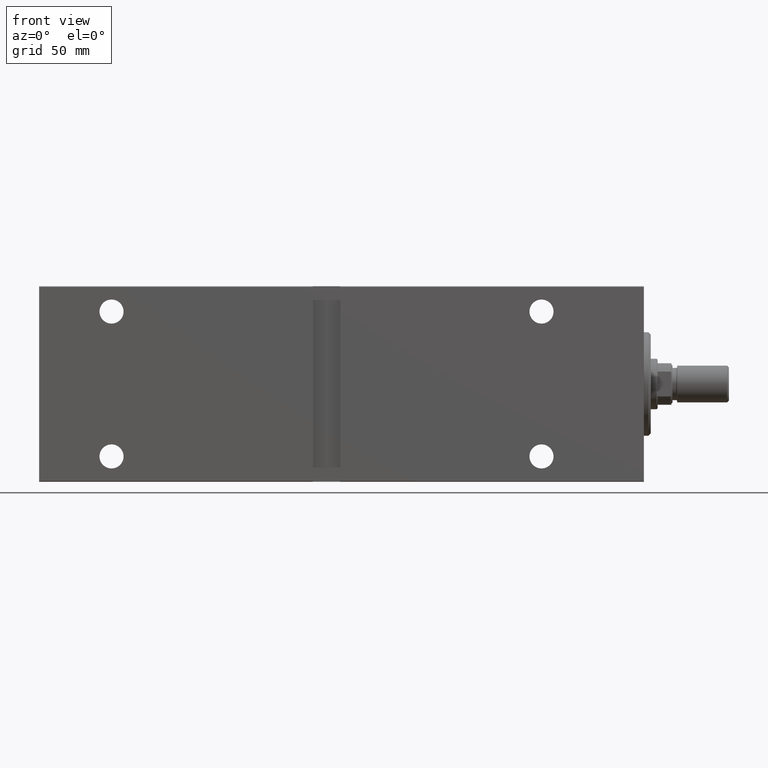
[diagram: clean part render]
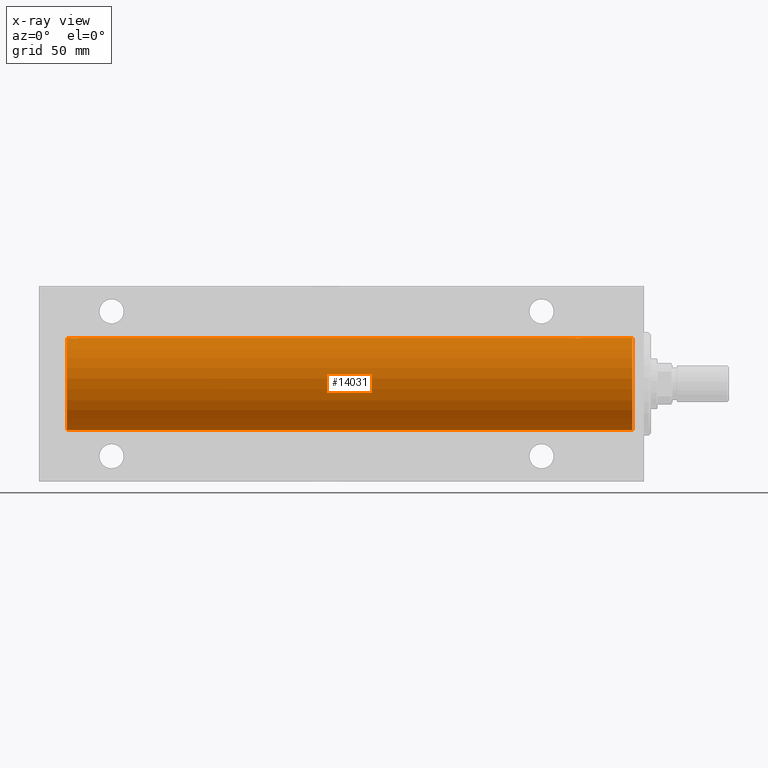
[diagram: x-ray — body ghosted, one internal face saturated and labeled with its STEP entity id]
A machine part, front view, then the same camera in x-ray: the body is ghosted and one INTERNAL B-rep face — a face not visible from any outside direction — is saturated and labeled: STEP entity #14031.
In plain terms, the highlighted cylindrical surface (partial cylindrical patch) has radius 20 mm, axis along (1, 0, -0).
Its self-contained STEP definition (entity closure, byte-faithful):
#6 = CARTESIAN_POINT ( 'NONE',  ( 249.2357636512790009, 1.002099838626311801, 19.97517568592526160 ) ) ;
#14 = ORIENTED_EDGE ( 'NONE', *, *, #35476, .T. ) ;
#445 = CARTESIAN_POINT ( 'NONE',  ( 245.5000000000000000, -1.553188236289650144E-23, 20.00000000000000000 ) ) ;
#854 = EDGE_CURVE ( 'NONE', #26790, #27711, #3797, .T. ) ;
#1412 = CARTESIAN_POINT ( 'NONE',  ( 30.39765113166073363, 0.6450624715427786260, 19.98996196681220283 ) ) ;
#1892 = LINE ( 'NONE', #12063, #39582 ) ;
#2194 = EDGE_LOOP ( 'NONE', ( #8814, #38151, #11118, #14, #37492, #19313, #3448, #4298 ) ) ;
#2640 = CIRCLE ( 'NONE', #18860, 20.00000000000000000 ) ;
#3448 = ORIENTED_EDGE ( 'NONE', *, *, #5705, .T. ) ;
#3797 = LINE ( 'NONE', #17269, #39447 ) ;
#3834 = VERTEX_POINT ( 'NONE', #36852 ) ;
#3983 = B_SPLINE_CURVE_WITH_KNOTS ( 'NONE', 3,
 ( #7081, #33828, #33386, #40885, #37133, #20571, #6, #23453, #10614, #30067, #27428, #30296, #6634, #36920, #43525, #37581, #7299, #16812, #34047, #10162, #23661, #3986, #17250, #30729, #13494, #17461, #33597, #26988, #20349, #445 ),
 .UNSPECIFIED., .F., .F.,
 ( 4, 2, 2, 2, 2, 2, 2, 2, 2, 2, 2, 2, 2, 2, 4 ),
 ( 6.293884343480953716E-18, 0.0003910512220831412721, 0.0007821024441662760389, 0.001173153666249410806, 0.001564204888332545573, 0.002346307332498815540, 0.003128409776665085074, 0.003519460998748178207, 0.003910512220831271341, 0.004301563442914364474, 0.004692614664997457607, 0.005083665887080551608, 0.005474717109163644742, 0.005865768331246737875, 0.006256819553329831009 ),
 .UNSPECIFIED. ) ;
#3986 = CARTESIAN_POINT ( 'NONE',  ( 245.9926135845601323, 1.321069663197669275, 19.95654117037011233 ) ) ;
#4096 = CARTESIAN_POINT ( 'NONE',  ( 5.000000000000004441, 2.449293598294706513E-15, -20.00000000000000000 ) ) ;
#4298 = ORIENTED_EDGE ( 'NONE', *, *, #36457, .T. ) ;
#4722 = DIRECTION ( 'NONE',  ( -1.000000000000000000, -0.000000000000000000, -0.000000000000000000 ) ) ;
#4912 = CARTESIAN_POINT ( 'NONE',  ( 251.0000000000000000, 0.000000000000000000, 0.000000000000000000 ) ) ;
#5055 = EDGE_CURVE ( 'NONE', #22207, #13619, #15989, .T. ) ;
#5163 = CARTESIAN_POINT ( 'NONE',  ( 26.50000000000001421, 0.1305706983324422532, 20.00000000000000355 ) ) ;
#5499 = CARTESIAN_POINT ( 'NONE',  ( 251.0000000000000000, 2.449293598294706513E-15, -20.00000000000000000 ) ) ;
#5705 = EDGE_CURVE ( 'NONE', #3834, #22300, #1892, .T. ) ;
#6634 = CARTESIAN_POINT ( 'NONE',  ( 247.7618015389742823, 1.999905101582714284, 19.89975827978156175 ) ) ;
#7081 = CARTESIAN_POINT ( 'NONE',  ( 249.5000000000000000, 6.477051911798287571E-15, 20.00000000000000000 ) ) ;
#7299 = CARTESIAN_POINT ( 'NONE',  ( 246.8562886936015275, 1.898109641280497639, 19.90978941500366872 ) ) ;
#7876 = VERTEX_POINT ( 'NONE', #36974 ) ;
#8036 = CARTESIAN_POINT ( 'NONE',  ( 29.02513908454997704, 1.947330458682951404, 19.90522393307485061 ) ) ;
#8242 = CARTESIAN_POINT ( 'NONE',  ( 26.70246098872837948, 0.8865903856744223877, 19.98070694681038972 ) ) ;
#8465 = CARTESIAN_POINT ( 'NONE',  ( 30.48701494615325558, 0.2622407139811342436, 19.99868965376114716 ) ) ;
#8814 = ORIENTED_EDGE ( 'NONE', *, *, #5055, .F. ) ;
#8954 = AXIS2_PLACEMENT_3D ( 'NONE', #24331, #37799, #21005 ) ;
#9339 = CYLINDRICAL_SURFACE ( 'NONE', #10277, 20.00000000000000000 ) ;
#10162 = CARTESIAN_POINT ( 'NONE',  ( 246.2803972465025311, 1.590453176650897360, 19.93679350243184345 ) ) ;
#10277 = AXIS2_PLACEMENT_3D ( 'NONE', #33208, #40026, #22834 ) ;
#10614 = CARTESIAN_POINT ( 'NONE',  ( 249.0061577038071903, 1.322305185229299962, 19.95645382900617903 ) ) ;
#11118 = ORIENTED_EDGE ( 'NONE', *, *, #854, .T. ) ;
#11354 = CARTESIAN_POINT ( 'NONE',  ( 30.43615228383326610, 0.5179893069484811097, 19.99370013622814213 ) ) ;
#11570 = CARTESIAN_POINT ( 'NONE',  ( 26.51308707988552982, 0.2631998640366412512, 19.99867931558985745 ) ) ;
#11782 = CARTESIAN_POINT ( 'NONE',  ( 26.50000000000000355, -1.552675476701256486E-23, 20.00000000000000000 ) ) ;
#11974 = DIRECTION ( 'NONE',  ( -1.000000000000000000, 0.000000000000000000, 0.000000000000000000 ) ) ;
#12063 = CARTESIAN_POINT ( 'NONE',  ( 251.0000000000000000, 0.000000000000000000, 20.00000000000000000 ) ) ;
#12229 = CARTESIAN_POINT ( 'NONE',  ( 30.00615770380712277, 1.322305185229317281, 19.95645382900617548 ) ) ;
#13154 = B_SPLINE_CURVE_WITH_KNOTS ( 'NONE', 3,
 ( #21516, #18428, #8465, #11354, #1412, #18207, #39178, #18643, #12229, #31691, #15105, #8036, #14892, #31905, #38527, #25716, #32117, #15321, #25281, #28386, #25498, #25061, #35425, #15548, #8242, #38969, #22172, #11570, #5163, #11782 ),
 .UNSPECIFIED., .F., .F.,
 ( 4, 2, 2, 2, 2, 2, 2, 2, 2, 2, 2, 2, 2, 2, 4 ),
 ( 2.326943606913493903E-17, 0.0003910512220831276653, 0.0007821024441662321287, 0.001173153666249336213, 0.001564204888332440839, 0.002346307332498649440, 0.003128409776664858692, 0.003519460998747968306, 0.003910512220831077919, 0.004301563442914186665, 0.004692614664997295411, 0.005083665887080405892, 0.005474717109163514638, 0.005865768331246624251, 0.006256819553329733864 ),
 .UNSPECIFIED. ) ;
#13494 = CARTESIAN_POINT ( 'NONE',  ( 245.7024609887283759, 0.8865903856744304923, 19.98070694681039328 ) ) ;
#13619 = VERTEX_POINT ( 'NONE', #4096 ) ;
#14031 = ADVANCED_FACE ( 'NONE', ( #26583 ), #9339, .F. ) ;
#14892 = CARTESIAN_POINT ( 'NONE',  ( 28.76180153897436753, 1.999905101582718503, 19.89975827978156531 ) ) ;
#15105 = CARTESIAN_POINT ( 'NONE',  ( 29.50645759073828600, 1.747830109444744595, 19.92373272380676852 ) ) ;
#15321 = CARTESIAN_POINT ( 'NONE',  ( 27.61403810544161885, 1.797847595792754438, 19.91909332229799290 ) ) ;
#15325 = CIRCLE ( 'NONE', #8954, 20.00000000000000000 ) ;
#15548 = CARTESIAN_POINT ( 'NONE',  ( 26.76510545398015850, 1.003547732426796957, 19.97510079925437765 ) ) ;
#15989 = LINE ( 'NONE', #42716, #41525 ) ;
#16022 = DIRECTION ( 'NONE',  ( -1.000000000000000000, -0.000000000000000000, -0.000000000000000000 ) ) ;
#16812 = CARTESIAN_POINT ( 'NONE',  ( 246.6140381054416935, 1.797847595792758879, 19.91909332229798224 ) ) ;
#17250 = CARTESIAN_POINT ( 'NONE',  ( 245.9099293231032561, 1.220099331833882195, 19.96304379627741454 ) ) ;
#17269 = CARTESIAN_POINT ( 'NONE',  ( 251.0000000000000000, 0.000000000000000000, 20.00000000000000000 ) ) ;
#17461 = CARTESIAN_POINT ( 'NONE',  ( 245.6021031264113503, 0.6443418861413122700, 19.98998539619404369 ) ) ;
#18207 = CARTESIAN_POINT ( 'NONE',  ( 30.29721343056695204, 0.8872481584516898057, 19.98067755938509293 ) ) ;
#18422 = LINE ( 'NONE', #35209, #42885 ) ;
#18428 = CARTESIAN_POINT ( 'NONE',  ( 30.49999999999993250, 0.1322335637814686382, 19.99999999999999645 ) ) ;
#18643 = CARTESIAN_POINT ( 'NONE',  ( 30.09059733457551289, 1.219458756546281775, 19.96308513509966787 ) ) ;
#18860 = AXIS2_PLACEMENT_3D ( 'NONE', #4912, #11974, #21921 ) ;
#19313 = ORIENTED_EDGE ( 'NONE', *, *, #40546, .T. ) ;
#20349 = CARTESIAN_POINT ( 'NONE',  ( 245.4999999999999716, 0.1305706983324437798, 20.00000000000000355 ) ) ;
#20571 = CARTESIAN_POINT ( 'NONE',  ( 249.2972134305668703, 0.8872481584516723752, 19.98067755938510359 ) ) ;
#21005 = DIRECTION ( 'NONE',  ( 0.000000000000000000, 0.000000000000000000, 1.000000000000000000 ) ) ;
#21516 = CARTESIAN_POINT ( 'NONE',  ( 30.50000000000000000, -1.366442278252767519E-14, 20.00000000000000000 ) ) ;
#21921 = DIRECTION ( 'NONE',  ( 0.000000000000000000, 0.000000000000000000, 1.000000000000000000 ) ) ;
#22172 = CARTESIAN_POINT ( 'NONE',  ( 26.56426851132708222, 0.5196544277756653951, 19.99365919015135873 ) ) ;
#22207 = VERTEX_POINT ( 'NONE', #5499 ) ;
#22300 = VERTEX_POINT ( 'NONE', #39514 ) ;
#22834 = DIRECTION ( 'NONE',  ( 0.000000000000000000, 0.000000000000000000, 1.000000000000000000 ) ) ;
#23453 = CARTESIAN_POINT ( 'NONE',  ( 249.0905973345755342, 1.219458756546266676, 19.96308513509966431 ) ) ;
#23661 = CARTESIAN_POINT ( 'NONE',  ( 246.1793983491616871, 1.507796451871725285, 19.94330239452387588 ) ) ;
#24331 = CARTESIAN_POINT ( 'NONE',  ( 5.000000000000004441, 0.000000000000000000, 0.000000000000000000 ) ) ;
#25061 = CARTESIAN_POINT ( 'NONE',  ( 26.99261358456011806, 1.321069663197660171, 19.95654117037012298 ) ) ;
#25266 = VERTEX_POINT ( 'NONE', #30386 ) ;
#25281 = CARTESIAN_POINT ( 'NONE',  ( 27.49702773215045681, 1.735228749583822117, 19.92471474456649005 ) ) ;
#25498 = CARTESIAN_POINT ( 'NONE',  ( 27.17939834916165509, 1.507796451871717514, 19.94330239452387943 ) ) ;
#25716 = CARTESIAN_POINT ( 'NONE',  ( 27.98100525813888240, 1.935912154109689531, 19.90610216711450775 ) ) ;
#26583 = FACE_OUTER_BOUND ( 'NONE', #2194, .T. ) ;
#26789 = CARTESIAN_POINT ( 'NONE',  ( 249.5000000000000000, 6.477051911798287571E-15, 20.00000000000000000 ) ) ;
#26790 = VERTEX_POINT ( 'NONE', #39558 ) ;
#26988 = CARTESIAN_POINT ( 'NONE',  ( 245.5130870798855369, 0.2631998640366418618, 19.99867931558985745 ) ) ;
#27428 = CARTESIAN_POINT ( 'NONE',  ( 248.5064575907383926, 1.747830109444734381, 19.92373272380677207 ) ) ;
#27711 = VERTEX_POINT ( 'NONE', #26789 ) ;
#28386 = CARTESIAN_POINT ( 'NONE',  ( 27.28039724650257014, 1.590453176650906908, 19.93679350243183990 ) ) ;
#30067 = CARTESIAN_POINT ( 'NONE',  ( 248.7295011223063455, 1.598854313793174775, 19.93684595445884966 ) ) ;
#30296 = CARTESIAN_POINT ( 'NONE',  ( 248.0251390845500055, 1.947330458682946075, 19.90522393307485416 ) ) ;
#30386 = CARTESIAN_POINT ( 'NONE',  ( 30.50000000000000000, -1.366442278252767519E-14, 20.00000000000000000 ) ) ;
#30729 = CARTESIAN_POINT ( 'NONE',  ( 245.7651054539801692, 1.003547732426790073, 19.97510079925437410 ) ) ;
#31691 = CARTESIAN_POINT ( 'NONE',  ( 29.72950112230632769, 1.598854313793188320, 19.93684595445884256 ) ) ;
#31905 = CARTESIAN_POINT ( 'NONE',  ( 28.37018818709292134, 2.000047251570880480, 19.89974399317116038 ) ) ;
#32117 = CARTESIAN_POINT ( 'NONE',  ( 27.85628869360149551, 1.898109641280495419, 19.90978941500367583 ) ) ;
#33208 = CARTESIAN_POINT ( 'NONE',  ( 251.0000000000000000, 0.000000000000000000, 0.000000000000000000 ) ) ;
#33386 = CARTESIAN_POINT ( 'NONE',  ( 249.4870149461532662, 0.2622407139811160914, 19.99868965376114716 ) ) ;
#33597 = CARTESIAN_POINT ( 'NONE',  ( 245.5642685113271000, 0.5196544277756655061, 19.99365919015135873 ) ) ;
#33828 = CARTESIAN_POINT ( 'NONE',  ( 249.5000000000000000, 0.1322335637814730791, 19.99999999999999289 ) ) ;
#34047 = CARTESIAN_POINT ( 'NONE',  ( 246.4970277321504568, 1.735228749583813901, 19.92471474456649005 ) ) ;
#35209 = CARTESIAN_POINT ( 'NONE',  ( 251.0000000000000000, 0.000000000000000000, 20.00000000000000000 ) ) ;
#35425 = CARTESIAN_POINT ( 'NONE',  ( 26.90992932310325969, 1.220099331833888634, 19.96304379627741099 ) ) ;
#35476 = EDGE_CURVE ( 'NONE', #27711, #7876, #3983, .T. ) ;
#36457 = EDGE_CURVE ( 'NONE', #22300, #13619, #15325, .T. ) ;
#36852 = CARTESIAN_POINT ( 'NONE',  ( 26.50000000000000355, -1.552675476701256486E-23, 20.00000000000000000 ) ) ;
#36920 = CARTESIAN_POINT ( 'NONE',  ( 247.3701881870929640, 2.000047251570877815, 19.89974399317115683 ) ) ;
#36974 = CARTESIAN_POINT ( 'NONE',  ( 245.5000000000000000, -1.553188236289650144E-23, 20.00000000000000000 ) ) ;
#37133 = CARTESIAN_POINT ( 'NONE',  ( 249.3976511316607514, 0.6450624715427595302, 19.98996196681220994 ) ) ;
#37492 = ORIENTED_EDGE ( 'NONE', *, *, #39264, .T. ) ;
#37581 = CARTESIAN_POINT ( 'NONE',  ( 246.9810052581388788, 1.935912154109689753, 19.90610216711451130 ) ) ;
#37799 = DIRECTION ( 'NONE',  ( -1.000000000000000000, 0.000000000000000000, 0.000000000000000000 ) ) ;
#38151 = ORIENTED_EDGE ( 'NONE', *, *, #41609, .F. ) ;
#38527 = CARTESIAN_POINT ( 'NONE',  ( 28.23758582179998911, 1.987020435121065853, 19.90106552791689509 ) ) ;
#38969 = CARTESIAN_POINT ( 'NONE',  ( 26.60210312641134678, 0.6443418861413038323, 19.98998539619404724 ) ) ;
#39178 = CARTESIAN_POINT ( 'NONE',  ( 30.23576365127895116, 1.002099838626329120, 19.97517568592526516 ) ) ;
#39264 = EDGE_CURVE ( 'NONE', #7876, #25266, #18422, .T. ) ;
#39414 = DIRECTION ( 'NONE',  ( -1.000000000000000000, -0.000000000000000000, -0.000000000000000000 ) ) ;
#39447 = VECTOR ( 'NONE', #40903, 1000.000000000000000 ) ;
#39514 = CARTESIAN_POINT ( 'NONE',  ( 5.000000000000004441, 0.000000000000000000, 20.00000000000000000 ) ) ;
#39558 = CARTESIAN_POINT ( 'NONE',  ( 251.0000000000000000, 0.000000000000000000, 20.00000000000000000 ) ) ;
#39582 = VECTOR ( 'NONE', #16022, 1000.000000000000000 ) ;
#40026 = DIRECTION ( 'NONE',  ( -1.000000000000000000, -0.000000000000000000, -0.000000000000000000 ) ) ;
#40546 = EDGE_CURVE ( 'NONE', #25266, #3834, #13154, .T. ) ;
#40885 = CARTESIAN_POINT ( 'NONE',  ( 249.4361522838332519, 0.5179893069484667878, 19.99370013622814923 ) ) ;
#40903 = DIRECTION ( 'NONE',  ( -1.000000000000000000, -0.000000000000000000, -0.000000000000000000 ) ) ;
#41525 = VECTOR ( 'NONE', #39414, 1000.000000000000000 ) ;
#41609 = EDGE_CURVE ( 'NONE', #26790, #22207, #2640, .T. ) ;
#42716 = CARTESIAN_POINT ( 'NONE',  ( 251.0000000000000000, 2.449293598294706513E-15, -20.00000000000000000 ) ) ;
#42885 = VECTOR ( 'NONE', #4722, 1000.000000000000000 ) ;
#43525 = CARTESIAN_POINT ( 'NONE',  ( 247.2375858217999678, 1.987020435121064965, 19.90106552791689154 ) ) ;